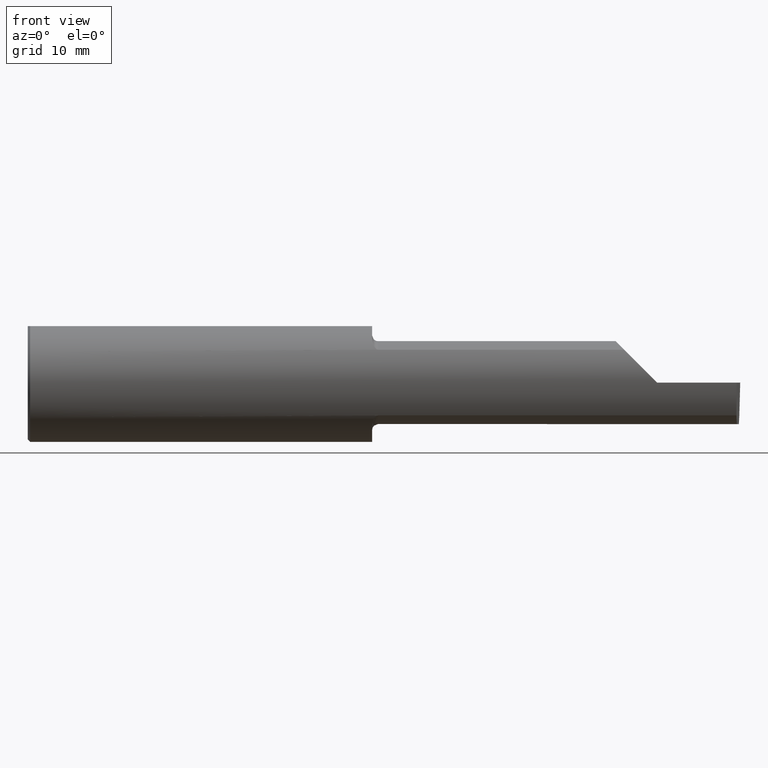
[diagram: clean part render]
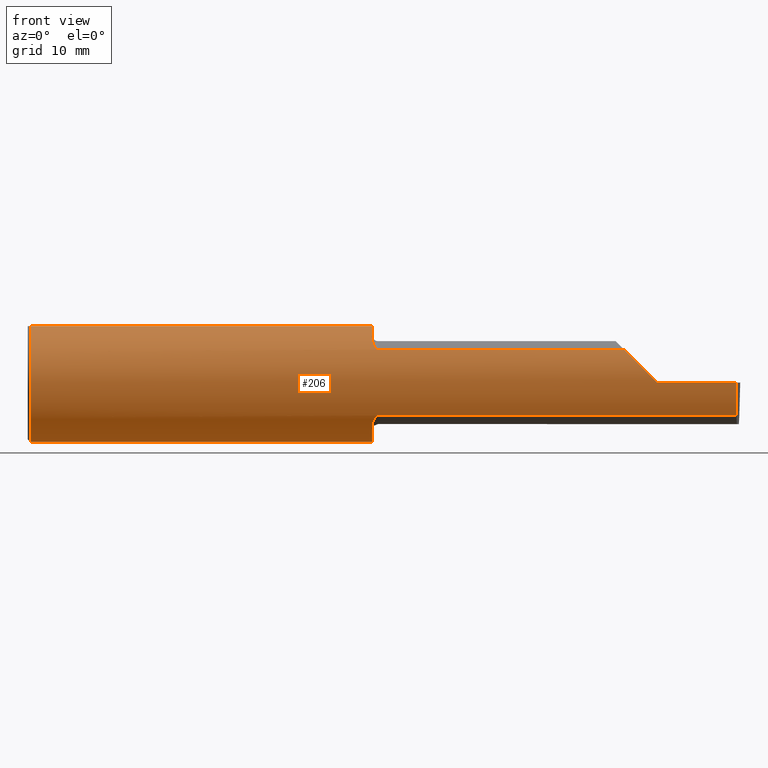
[diagram: same view with one face highlighted and labeled with its STEP entity id]
A machine part, front view. The second image highlights one B-rep face of the part: STEP entity #206.
In plain terms, the highlighted cylindrical surface (partial cylindrical patch) has radius 6.3462 mm, axis along (-1, -0, -0).
Its self-contained STEP definition (entity closure, byte-faithful):
#5 = DIRECTION ( 'NONE',  ( 0.000000000000000000, 0.000000000000000000, -1.000000000000000000 ) ) ;
#8 = CARTESIAN_POINT ( 'NONE',  ( 1.474999999999999867, -0.2080850024789289709, 0.1382955322609668580 ) ) ;
#9 = AXIS2_PLACEMENT_3D ( 'NONE', #137, #246, #566 ) ;
#11 = VERTEX_POINT ( 'NONE', #312 ) ;
#12 = CARTESIAN_POINT ( 'NONE',  ( 1.450000000000000178, -0.1616050818046604332, -0.1905487340154980169 ) ) ;
#16 = EDGE_CURVE ( 'NONE', #11, #535, #95, .T. ) ;
#21 = CARTESIAN_POINT ( 'NONE',  ( 1.458176740666625504, -0.1972027065478073882, -0.1535263573771914747 ) ) ;
#26 =( BOUNDED_CURVE ( )  B_SPLINE_CURVE ( 3, ( #378, #272, #57, #433 ),
 .UNSPECIFIED., .F., .F. ) 
 B_SPLINE_CURVE_WITH_KNOTS ( ( 4, 4 ),
 ( 4.712388980384689674, 5.298966915116347209 ),
 .UNSPECIFIED. ) 
 CURVE ( )  GEOMETRIC_REPRESENTATION_ITEM ( )  RATIONAL_B_SPLINE_CURVE ( ( 1.000000000000000000, 0.9715321379117538569, 0.9715321379117538569, 1.000000000000000000 ) ) 
 REPRESENTATION_ITEM ( '' )  );
#27 = LINE ( 'NONE', #287, #313 ) ;
#57 = CARTESIAN_POINT ( 'NONE',  ( 2.552984868485332015, -0.2355204011147991883, 0.09701513151466749363 ) ) ;
#60 = CARTESIAN_POINT ( 'NONE',  ( 0.009999999999999856226, 0.07650098038587520299, 0.2378499999999998671 ) ) ;
#61 = EDGE_CURVE ( 'NONE', #11, #241, #405, .T. ) ;
#63 = VERTEX_POINT ( 'NONE', #690 ) ;
#66 = ORIENTED_EDGE ( 'NONE', *, *, #317, .T. ) ;
#67 = AXIS2_PLACEMENT_3D ( 'NONE', #305, #368, #587 ) ;
#68 = CARTESIAN_POINT ( 'NONE',  ( 1.462579853086618975, -0.2024300470081734638, -0.1464774911482685238 ) ) ;
#72 = EDGE_LOOP ( 'NONE', ( #144, #334, #66, #300, #373, #482, #651, #612, #163, #202, #605, #255, #349 ) ) ;
#74 = CARTESIAN_POINT ( 'NONE',  ( 2.984886542352623628, -0.2498499999999999888, 0.000000000000000000 ) ) ;
#75 = VERTEX_POINT ( 'NONE', #525 ) ;
#79 = CARTESIAN_POINT ( 'NONE',  ( 1.458182335268384477, -0.1972192205116130859, 0.1535061413537210095 ) ) ;
#88 = CARTESIAN_POINT ( 'NONE',  ( 2.174394315000000244, -0.2080850024789289432, -0.1382955322609668858 ) ) ;
#90 = AXIS2_PLACEMENT_3D ( 'NONE', #180, #268, #601 ) ;
#95 = LINE ( 'NONE', #521, #115 ) ;
#113 = CARTESIAN_POINT ( 'NONE',  ( 0.009999999999999856226, 0.000000000000000000, 0.000000000000000000 ) ) ;
#115 = VECTOR ( 'NONE', #409, 39.37007874015748143 ) ;
#125 = CARTESIAN_POINT ( 'NONE',  ( 1.451385488563270432, -0.1808287530430325862, -0.1728790649396287071 ) ) ;
#137 = CARTESIAN_POINT ( 'NONE',  ( 1.450000000000000178, 0.000000000000000000, 0.000000000000000000 ) ) ;
#144 = ORIENTED_EDGE ( 'NONE', *, *, #497, .F. ) ;
#152 = EDGE_CURVE ( 'NONE', #297, #673, #434, .T. ) ;
#163 = ORIENTED_EDGE ( 'NONE', *, *, #61, .T. ) ;
#166 = VERTEX_POINT ( 'NONE', #375 ) ;
#180 = CARTESIAN_POINT ( 'NONE',  ( 0.000000000000000000, 0.000000000000000000, 0.000000000000000000 ) ) ;
#181 = VERTEX_POINT ( 'NONE', #427 ) ;
#189 = VECTOR ( 'NONE', #689, 39.37007874015748143 ) ;
#193 = EDGE_CURVE ( 'NONE', #241, #673, #291, .T. ) ;
#195 = CARTESIAN_POINT ( 'NONE',  ( 4.499279347985562423E-32, -0.2498499999999999610, 3.673940397442054938E-16 ) ) ;
#202 = ORIENTED_EDGE ( 'NONE', *, *, #193, .T. ) ;
#206 = ADVANCED_FACE ( 'NONE', ( #540 ), #658, .T. ) ;
#232 = CIRCLE ( 'NONE', #9, 0.2498499999999999888 ) ;
#240 = CARTESIAN_POINT ( 'NONE',  ( 2.983929579294953616, -0.2080850024789288599, -0.1382955322609668858 ) ) ;
#241 = VERTEX_POINT ( 'NONE', #431 ) ;
#245 = EDGE_CURVE ( 'NONE', #63, #588, #656, .T. ) ;
#246 = DIRECTION ( 'NONE',  ( 1.000000000000000000, 5.995991820921354631E-17, 0.000000000000000000 ) ) ;
#251 = CARTESIAN_POINT ( 'NONE',  ( 1.450000000000000178, -0.07650098038587527238, 0.2378499999999998671 ) ) ;
#254 = LINE ( 'NONE', #88, #189 ) ;
#255 = ORIENTED_EDGE ( 'NONE', *, *, #288, .F. ) ;
#268 = DIRECTION ( 'NONE',  ( -1.000000000000000000, -0.000000000000000000, -0.000000000000000000 ) ) ;
#272 = CARTESIAN_POINT ( 'NONE',  ( 2.600434159100402987, -0.2498499999999999610, 0.04956584089959698708 ) ) ;
#283 = CARTESIAN_POINT ( 'NONE',  ( 1.474999999999999867, -0.2080850024789289709, 0.1382955322609668580 ) ) ;
#287 = CARTESIAN_POINT ( 'NONE',  ( 2.174394315000000244, -0.2080850024789289432, 0.1382955322609668858 ) ) ;
#288 = EDGE_CURVE ( 'NONE', #583, #297, #232, .T. ) ;
#291 = CIRCLE ( 'NONE', #692, 0.2498499999999999888 ) ;
#295 = CARTESIAN_POINT ( 'NONE',  ( 1.449999999999999734, -0.1716188362992554506, -0.1820560320165479640 ) ) ;
#297 = VERTEX_POINT ( 'NONE', #450 ) ;
#300 = ORIENTED_EDGE ( 'NONE', *, *, #547, .T. ) ;
#305 = CARTESIAN_POINT ( 'NONE',  ( 0.009999999999999856226, 0.000000000000000000, 0.000000000000000000 ) ) ;
#312 = CARTESIAN_POINT ( 'NONE',  ( 0.009999999999999856226, -0.07650098038587520299, 0.2378499999999998671 ) ) ;
#313 = VECTOR ( 'NONE', #403, 39.37007874015748143 ) ;
#315 = DIRECTION ( 'NONE',  ( 0.000000000000000000, 1.000000000000000000, 0.000000000000000000 ) ) ;
#317 = EDGE_CURVE ( 'NONE', #166, #75, #337, .T. ) ;
#321 = DIRECTION ( 'NONE',  ( 1.000000000000000000, 0.000000000000000000, 0.000000000000000000 ) ) ;
#325 = CARTESIAN_POINT ( 'NONE',  ( 1.450000000000000622, -0.1665641037263010382, 0.1863429692936361681 ) ) ;
#334 = ORIENTED_EDGE ( 'NONE', *, *, #376, .T. ) ;
#337 = LINE ( 'NONE', #195, #622 ) ;
#349 = ORIENTED_EDGE ( 'NONE', *, *, #701, .F. ) ;
#353 = B_SPLINE_CURVE_WITH_KNOTS ( 'NONE', 3,
 ( #441, #445, #454, #401, #620, #559, #68, #21, #609, #125, #295, #12 ),
 .UNSPECIFIED., .F., .F.,
 ( 4, 2, 2, 2, 2, 4 ),
 ( 1.964491429041408615E-07, 0.0001260981470478281219, 0.0002519998449527520641, 0.0005038032407626139887, 0.001007410032382337946, 0.002014623615621791066 ),
 .UNSPECIFIED. ) ;
#368 = DIRECTION ( 'NONE',  ( 1.000000000000000000, 0.000000000000000000, 0.000000000000000000 ) ) ;
#373 = ORIENTED_EDGE ( 'NONE', *, *, #682, .F. ) ;
#375 = CARTESIAN_POINT ( 'NONE',  ( 2.984886542352623628, -0.2498499999999999888, 0.000000000000000000 ) ) ;
#376 = EDGE_CURVE ( 'NONE', #181, #166, #463, .T. ) ;
#378 = CARTESIAN_POINT ( 'NONE',  ( 2.650000000000000355, -0.2498499999999999610, 4.286263797015729199E-17 ) ) ;
#396 = VERTEX_POINT ( 'NONE', #617 ) ;
#401 = CARTESIAN_POINT ( 'NONE',  ( 1.468863362722770294, -0.2068301641248769251, -0.1401678546132361924 ) ) ;
#402 = CARTESIAN_POINT ( 'NONE',  ( 1.473329956043142319, -0.2080850024798589770, 0.1382955322595676717 ) ) ;
#403 = DIRECTION ( 'NONE',  ( 1.000000000000000000, 5.995991820921354631E-17, 0.000000000000000000 ) ) ;
#405 = CIRCLE ( 'NONE', #67, 0.2498499999999999888 ) ;
#409 = DIRECTION ( 'NONE',  ( 1.000000000000000000, 0.000000000000000000, 0.000000000000000000 ) ) ;
#427 = CARTESIAN_POINT ( 'NONE',  ( 2.983929579294953616, -0.2080850024789288599, -0.1382955322609668858 ) ) ;
#428 = AXIS2_PLACEMENT_3D ( 'NONE', #590, #548, #315 ) ;
#429 = VERTEX_POINT ( 'NONE', #574 ) ;
#431 = CARTESIAN_POINT ( 'NONE',  ( 0.009999999999999856226, 0.000000000000000000, -0.2498499999999999888 ) ) ;
#433 = CARTESIAN_POINT ( 'NONE',  ( 2.511704467739032332, -0.2080850024789289432, 0.1382955322609668858 ) ) ;
#434 = LINE ( 'NONE', #484, #657 ) ;
#441 = CARTESIAN_POINT ( 'NONE',  ( 1.474999999999999867, -0.2080850024789289987, -0.1382955322609668025 ) ) ;
#445 = CARTESIAN_POINT ( 'NONE',  ( 1.473318040126429196, -0.2080850024789288599, -0.1382955322609669413 ) ) ;
#450 = CARTESIAN_POINT ( 'NONE',  ( 1.450000000000000178, 0.07650098038587520299, 0.2378499999999998671 ) ) ;
#454 = CARTESIAN_POINT ( 'NONE',  ( 1.471700027347579320, -0.2077785947292767332, -0.1387580622202826963 ) ) ;
#458 = CARTESIAN_POINT ( 'NONE',  ( 2.983692505346974944, -0.2355204011147991883, -0.09701513151466779894 ) ) ;
#463 =( BOUNDED_CURVE ( )  B_SPLINE_CURVE ( 3, ( #240, #458, #560, #74 ),
 .UNSPECIFIED., .F., .T. ) 
 B_SPLINE_CURVE_WITH_KNOTS ( ( 4, 4 ),
 ( 6.160376845738953833, 6.746954780470613144 ),
 .UNSPECIFIED. ) 
 CURVE ( )  GEOMETRIC_REPRESENTATION_ITEM ( )  RATIONAL_B_SPLINE_CURVE ( ( 1.000000000000000000, 0.9715321379117536349, 0.9715321379117536349, 1.000000000000000000 ) ) 
 REPRESENTATION_ITEM ( '' )  );
#482 = ORIENTED_EDGE ( 'NONE', *, *, #245, .F. ) ;
#484 = CARTESIAN_POINT ( 'NONE',  ( 0.000000000000000000, 0.07650098038587520299, 0.2378499999999998671 ) ) ;
#489 = CARTESIAN_POINT ( 'NONE',  ( 1.451849548162864600, -0.1805300287242673496, 0.1728462070311780896 ) ) ;
#497 = EDGE_CURVE ( 'NONE', #181, #429, #254, .T. ) ;
#500 = CARTESIAN_POINT ( 'NONE',  ( 1.464343523383978996, -0.2041337200786082218, 0.1440846171672512943 ) ) ;
#507 = CARTESIAN_POINT ( 'NONE',  ( 1.456159563508734101, -0.1933019864360848994, 0.1584298865564832681 ) ) ;
#512 = CARTESIAN_POINT ( 'NONE',  ( 1.452968662030528879, -0.1849684355203377595, 0.1680843977756267815 ) ) ;
#521 = CARTESIAN_POINT ( 'NONE',  ( 0.000000000000000000, -0.07650098038587520299, 0.2378499999999998671 ) ) ;
#525 = CARTESIAN_POINT ( 'NONE',  ( 2.650000000000000355, -0.2498499999999999610, 4.286263797015729199E-17 ) ) ;
#535 = VERTEX_POINT ( 'NONE', #251 ) ;
#540 = FACE_OUTER_BOUND ( 'NONE', #72, .T. ) ;
#545 = CARTESIAN_POINT ( 'NONE',  ( 1.450367168219774072, -0.1713400252854603567, 0.1819601557798505576 ) ) ;
#547 = EDGE_CURVE ( 'NONE', #75, #396, #26, .T. ) ;
#548 = DIRECTION ( 'NONE',  ( 1.000000000000000000, 5.995991820921354631E-17, 0.000000000000000000 ) ) ;
#555 = DIRECTION ( 'NONE',  ( -1.000000000000000000, -0.000000000000000000, -0.000000000000000000 ) ) ;
#559 = CARTESIAN_POINT ( 'NONE',  ( 1.464302603425052141, -0.2041009206016213273, -0.1441313430770040926 ) ) ;
#560 = CARTESIAN_POINT ( 'NONE',  ( 2.984020840019027343, -0.2498500000000000443, -0.04956584089959705647 ) ) ;
#563 = CARTESIAN_POINT ( 'NONE',  ( 1.462616400345755352, -0.2024684335577102146, 0.1464246884265638926 ) ) ;
#566 = DIRECTION ( 'NONE',  ( 0.000000000000000000, 1.000000000000000000, 0.000000000000000000 ) ) ;
#574 = CARTESIAN_POINT ( 'NONE',  ( 1.474999999999999867, -0.2080850024789289987, -0.1382955322609668025 ) ) ;
#583 = VERTEX_POINT ( 'NONE', #652 ) ;
#587 = DIRECTION ( 'NONE',  ( 0.000000000000000000, 0.000000000000000000, -1.000000000000000000 ) ) ;
#588 = VERTEX_POINT ( 'NONE', #8 ) ;
#590 = CARTESIAN_POINT ( 'NONE',  ( 1.450000000000000178, 0.000000000000000000, 0.000000000000000000 ) ) ;
#601 = DIRECTION ( 'NONE',  ( 0.000000000000000000, 0.000000000000000000, 1.000000000000000000 ) ) ;
#605 = ORIENTED_EDGE ( 'NONE', *, *, #152, .F. ) ;
#607 = DIRECTION ( 'NONE',  ( -1.000000000000000000, -0.000000000000000000, -0.000000000000000000 ) ) ;
#609 = CARTESIAN_POINT ( 'NONE',  ( 1.456147634408387681, -0.1932733126899460474, -0.1584637047788197972 ) ) ;
#612 = ORIENTED_EDGE ( 'NONE', *, *, #16, .F. ) ;
#617 = CARTESIAN_POINT ( 'NONE',  ( 2.511704467739032332, -0.2080850024789289432, 0.1382955322609668858 ) ) ;
#619 = CARTESIAN_POINT ( 'NONE',  ( 1.468876997637615256, -0.2068363917296600907, 0.1401586554522230021 ) ) ;
#620 = CARTESIAN_POINT ( 'NONE',  ( 1.467611663768900288, -0.2061921161193829566, -0.1411075319999378352 ) ) ;
#621 = CARTESIAN_POINT ( 'NONE',  ( 1.467647060162628581, -0.2062109266231181293, 0.1410799729252291967 ) ) ;
#622 = VECTOR ( 'NONE', #555, 39.37007874015748143 ) ;
#650 = CARTESIAN_POINT ( 'NONE',  ( 1.450000000000000178, -0.1616050818046604332, 0.1905487340154980169 ) ) ;
#651 = ORIENTED_EDGE ( 'NONE', *, *, #662, .F. ) ;
#652 = CARTESIAN_POINT ( 'NONE',  ( 1.450000000000000178, -0.1616050818046604332, -0.1905487340154980169 ) ) ;
#656 = B_SPLINE_CURVE_WITH_KNOTS ( 'NONE', 3,
 ( #650, #325, #545, #489, #512, #507, #79, #563, #500, #621, #619, #677, #402, #283 ),
 .UNSPECIFIED., .F., .F.,
 ( 4, 2, 2, 2, 2, 2, 4 ),
 ( 0.0003834465838148155706, 0.0008781406165086595716, 0.001372834649202503681, 0.001867528681896347791, 0.002114875698243274399, 0.002238549206416744208, 0.002362222714590214451 ),
 .UNSPECIFIED. ) ;
#657 = VECTOR ( 'NONE', #607, 39.37007874015748143 ) ;
#658 = CYLINDRICAL_SURFACE ( 'NONE', #90, 0.2498499999999999888 ) ;
#659 = CIRCLE ( 'NONE', #428, 0.2498499999999999888 ) ;
#662 = EDGE_CURVE ( 'NONE', #535, #63, #659, .T. ) ;
#673 = VERTEX_POINT ( 'NONE', #60 ) ;
#677 = CARTESIAN_POINT ( 'NONE',  ( 1.471718393013768944, -0.2077830475237241459, 0.1387513848711937336 ) ) ;
#682 = EDGE_CURVE ( 'NONE', #588, #396, #27, .T. ) ;
#689 = DIRECTION ( 'NONE',  ( -1.000000000000000000, -5.995991820921354631E-17, -0.000000000000000000 ) ) ;
#690 = CARTESIAN_POINT ( 'NONE',  ( 1.450000000000000178, -0.1616050818046604332, 0.1905487340154980169 ) ) ;
#692 = AXIS2_PLACEMENT_3D ( 'NONE', #113, #321, #5 ) ;
#701 = EDGE_CURVE ( 'NONE', #429, #583, #353, .T. ) ;